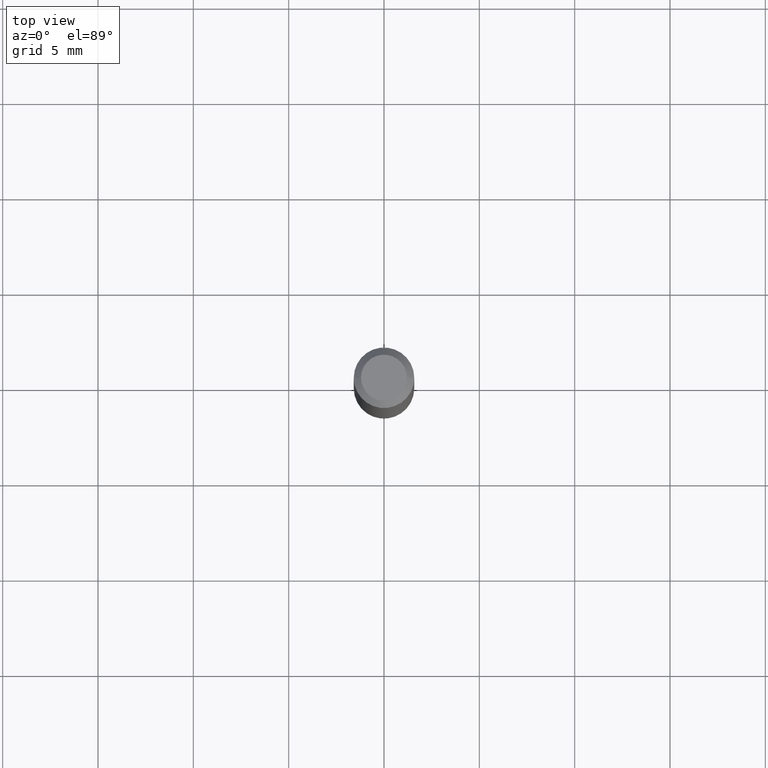
[diagram: clean part render]
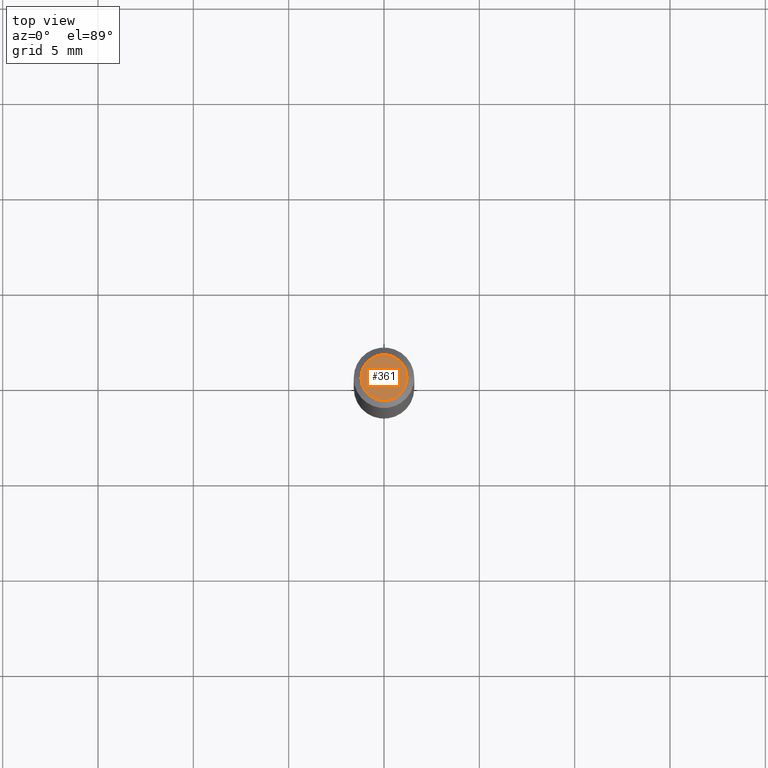
[diagram: same view with one face highlighted and labeled with its STEP entity id]
A machine part, top view. The second image highlights one B-rep face of the part: STEP entity #361.
In plain terms, the highlighted planar face has unit normal (0, -0, -1).
Its self-contained STEP definition (entity closure, byte-faithful):
#25 = CARTESIAN_POINT ( 'NONE',  ( -0.04749999999999999362, 3.578768372314202617E-16, -4.684051019975790718E-16 ) ) ;
#28 = ORIENTED_EDGE ( 'NONE', *, *, #60, .T. ) ;
#50 = EDGE_CURVE ( 'NONE', #328, #173, #240, .T. ) ;
#60 = EDGE_CURVE ( 'NONE', #173, #328, #360, .T. ) ;
#78 = AXIS2_PLACEMENT_3D ( 'NONE', #92, #453, #223 ) ;
#92 = CARTESIAN_POINT ( 'NONE',  ( 1.145470065593040868E-44, -1.635427672643458845E-30, -4.684051019975766066E-16 ) ) ;
#109 = CARTESIAN_POINT ( 'NONE',  ( 3.316907271900976096E-16, 0.04749999999999999362, -4.000479145938377490E-16 ) ) ;
#133 = EDGE_LOOP ( 'NONE', ( #28, #291 ) ) ;
#148 = CARTESIAN_POINT ( 'NONE',  ( 0.04749999999999999362, -4.035134999187586019E-16, -4.684051019975741414E-16 ) ) ;
#173 = VERTEX_POINT ( 'NONE', #25 ) ;
#199 = DIRECTION ( 'NONE',  ( 1.000000000000000000, -6.982962677686267499E-15, 4.852736867747366768E-29 ) ) ;
#223 = DIRECTION ( 'NONE',  ( 1.000000000000000000, -6.982962677686267499E-15, 4.852736867747366768E-29 ) ) ;
#240 = CIRCLE ( 'NONE', #78, 0.04749999999999999362 ) ;
#252 = DIRECTION ( 'NONE',  ( 2.438088387897960049E-29, -3.491481338843145188E-15, -1.000000000000000000 ) ) ;
#281 = AXIS2_PLACEMENT_3D ( 'NONE', #383, #409, #199 ) ;
#287 = FACE_OUTER_BOUND ( 'NONE', #133, .T. ) ;
#291 = ORIENTED_EDGE ( 'NONE', *, *, #50, .T. ) ;
#328 = VERTEX_POINT ( 'NONE', #148 ) ;
#347 = AXIS2_PLACEMENT_3D ( 'NONE', #109, #252, #375 ) ;
#360 = CIRCLE ( 'NONE', #281, 0.04749999999999999362 ) ;
#361 = ADVANCED_FACE ( 'NONE', ( #287 ), #440, .F. ) ;
#375 = DIRECTION ( 'NONE',  ( -1.000000000000000000, 6.982962677686265922E-15, -4.876176775795935793E-29 ) ) ;
#383 = CARTESIAN_POINT ( 'NONE',  ( 1.145470065593040868E-44, -1.635427672643458845E-30, -4.684051019975766066E-16 ) ) ;
#409 = DIRECTION ( 'NONE',  ( -2.445468806185136597E-29, 3.491481338843145583E-15, 1.000000000000000000 ) ) ;
#440 = PLANE ( 'NONE',  #347 ) ;
#453 = DIRECTION ( 'NONE',  ( -2.445468806185136597E-29, 3.491481338843145583E-15, 1.000000000000000000 ) ) ;